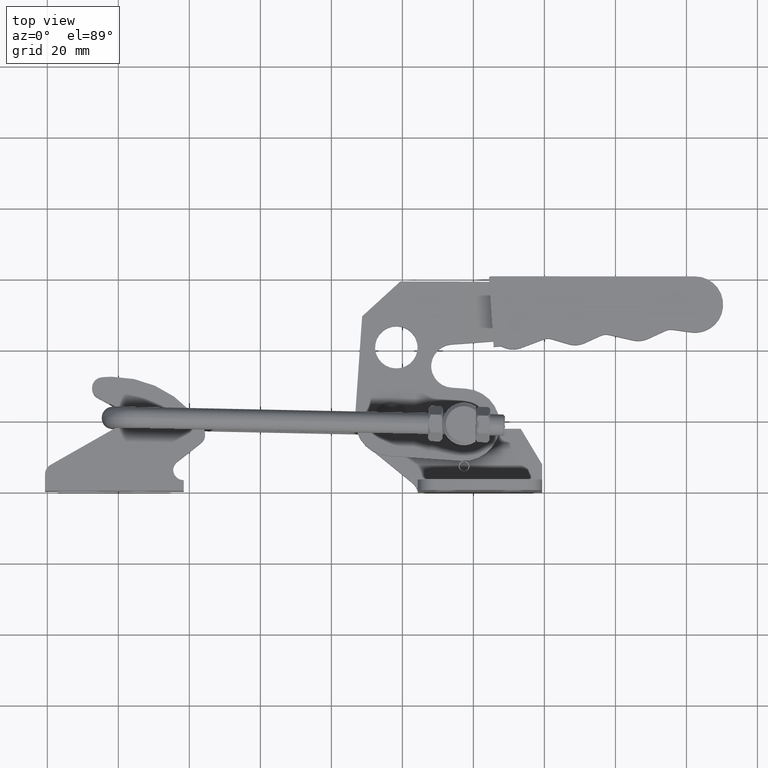
[diagram: clean part render]
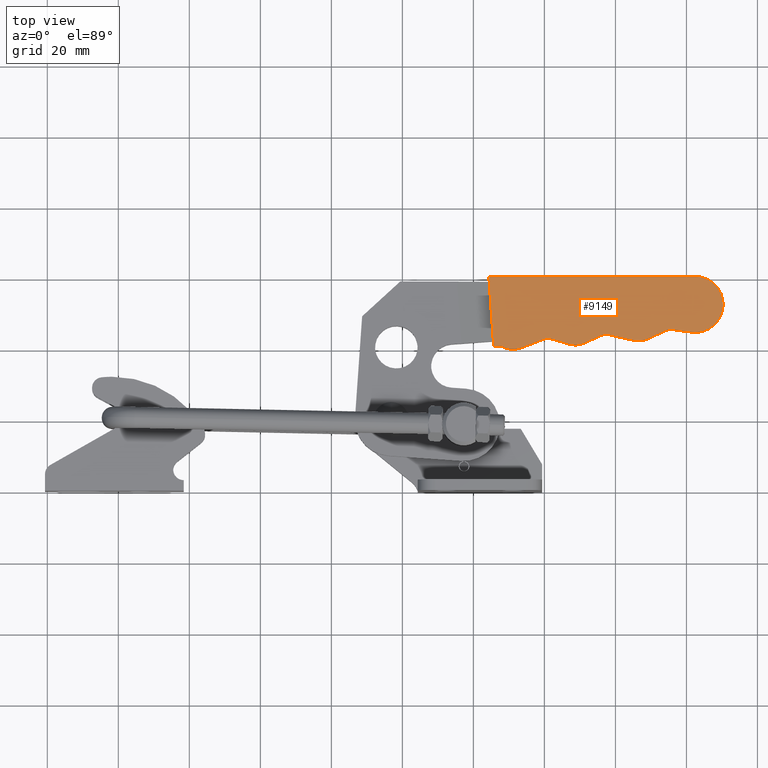
[diagram: same view with one face highlighted and labeled with its STEP entity id]
A machine part, top view. The second image highlights one B-rep face of the part: STEP entity #9149.
In plain terms, the highlighted planar face has unit normal (0, 0, -1).
Its self-contained STEP definition (entity closure, byte-faithful):
#76 = DIRECTION ( 'NONE',  ( 3.528049263139742100E-015, 2.465103509258972600E-016, -1.000000000000000000 ) ) ;
#91 = ORIENTED_EDGE ( 'NONE', *, *, #3216, .F. ) ;
#142 = DIRECTION ( 'NONE',  ( -0.9907650519138800900, 0.1355898665317079600, -3.462043605768647000E-015 ) ) ;
#207 = AXIS2_PLACEMENT_3D ( 'NONE', #624, #5859, #1384 ) ;
#265 = VECTOR ( 'NONE', #3453, 999.9999999999998900 ) ;
#420 = CARTESIAN_POINT ( 'NONE',  ( -8.394934574473172300, 39.99436621426871600, 4.499999999999398700 ) ) ;
#453 = AXIS2_PLACEMENT_3D ( 'NONE', #2389, #7615, #3133 ) ;
#496 = LINE ( 'NONE', #4918, #265 ) ;
#499 = DIRECTION ( 'NONE',  ( -3.528049263139742100E-015, -2.465103509258972600E-016, 1.000000000000000000 ) ) ;
#563 = EDGE_CURVE ( 'NONE', #1938, #8338, #6889, .T. ) ;
#624 = CARTESIAN_POINT ( 'NONE',  ( -8.847024502132685000, 46.47763358854141600, 4.499999999999398700 ) ) ;
#722 = DIRECTION ( 'NONE',  ( -0.06956288315259116800, 0.9975775685567007700, 0.0000000000000000000 ) ) ;
#744 = VECTOR ( 'NONE', #5082, 1000.000000000000200 ) ;
#770 = CARTESIAN_POINT ( 'NONE',  ( -15.62153153633381900, 59.99098630392347800, 4.499999999999377400 ) ) ;
#807 = VERTEX_POINT ( 'NONE', #974 ) ;
#819 = DIRECTION ( 'NONE',  ( 3.528049263139742100E-015, 2.465103509258972600E-016, -1.000000000000000000 ) ) ;
#873 = CARTESIAN_POINT ( 'NONE',  ( 9.101349349825842000, 41.19585923807838400, 4.499999999999460000 ) ) ;
#881 = CARTESIAN_POINT ( 'NONE',  ( 42.44017598813253000, 52.60983404294545800, 4.499999999999580800 ) ) ;
#888 = CARTESIAN_POINT ( 'NONE',  ( 42.45489657251189900, 60.49998626798250000, 4.499999999999582600 ) ) ;
#905 = ORIENTED_EDGE ( 'NONE', *, *, #4943, .F. ) ;
#932 = ORIENTED_EDGE ( 'NONE', *, *, #563, .F. ) ;
#971 = CARTESIAN_POINT ( 'NONE',  ( 8.649250681687508500, 47.67925195657510100, 4.499999999999460000 ) ) ;
#974 = CARTESIAN_POINT ( 'NONE',  ( 15.88259737713627100, 43.83776167337118300, 4.499999999999484900 ) ) ;
#998 = VERTEX_POINT ( 'NONE', #2312 ) ;
#1012 = AXIS2_PLACEMENT_3D ( 'NONE', #5508, #1036, #6281 ) ;
#1036 = DIRECTION ( 'NONE',  ( 3.528049263139742100E-015, 2.465103509258972600E-016, -1.000000000000000000 ) ) ;
#1051 = CARTESIAN_POINT ( 'NONE',  ( 26.88525810611597300, 42.36917634020557000, 4.499999999999523000 ) ) ;
#1098 = CIRCLE ( 'NONE', #6557, 6.499136430941328900 ) ;
#1285 = ORIENTED_EDGE ( 'NONE', *, *, #2264, .F. ) ;
#1289 = EDGE_CURVE ( 'NONE', #7146, #8285, #3901, .T. ) ;
#1365 = VECTOR ( 'NONE', #142, 1000.000000000000100 ) ;
#1384 = DIRECTION ( 'NONE',  ( -0.06956288315259134800, 0.9975775685567007700, 0.0000000000000000000 ) ) ;
#1417 = CARTESIAN_POINT ( 'NONE',  ( 29.11299635033703500, 42.93161349163890600, 4.499999999999531000 ) ) ;
#1442 = CARTESIAN_POINT ( 'NONE',  ( 41.42658425903755400, 44.78504327024285200, 4.499999999999575500 ) ) ;
#1482 = DIRECTION ( 'NONE',  ( -0.9355093781876253600, -0.3533018586464023400, -3.387615737532867500E-015 ) ) ;
#1555 = CIRCLE ( 'NONE', #3596, 0.5000000000000767200 ) ;
#1561 = FACE_OUTER_BOUND ( 'NONE', #8231, .T. ) ;
#1646 = DIRECTION ( 'NONE',  ( -0.06956288315259177800, 0.9975775685567006600, 0.0000000000000000000 ) ) ;
#1740 = DIRECTION ( 'NONE',  ( -0.06956288315259122300, 0.9975775685567006600, 0.0000000000000000000 ) ) ;
#1853 = CARTESIAN_POINT ( 'NONE',  ( 26.43311949642993100, 48.85314184680763800, 4.499999999999523000 ) ) ;
#1890 = EDGE_CURVE ( 'NONE', #8691, #998, #3305, .T. ) ;
#1922 = VERTEX_POINT ( 'NONE', #3205 ) ;
#1938 = VERTEX_POINT ( 'NONE', #9791 ) ;
#2042 = ORIENTED_EDGE ( 'NONE', *, *, #3042, .F. ) ;
#2133 = CARTESIAN_POINT ( 'NONE',  ( 42.44017598813253000, 52.60983404294545800, 4.499999999999580800 ) ) ;
#2233 = CARTESIAN_POINT ( 'NONE',  ( -0.2155267902284804800, 42.79035190241494000, 4.499999999999428000 ) ) ;
#2235 = EDGE_CURVE ( 'NONE', #807, #8301, #2721, .T. ) ;
#2264 = EDGE_CURVE ( 'NONE', #4058, #7446, #2965, .T. ) ;
#2312 = CARTESIAN_POINT ( 'NONE',  ( -14.28231617154315800, 40.72736354355279100, 4.499999999999377400 ) ) ;
#2343 = CARTESIAN_POINT ( 'NONE',  ( 6.796185072324989900, 41.44989226272318900, 4.499999999999452000 ) ) ;
#2355 = ORIENTED_EDGE ( 'NONE', *, *, #1289, .F. ) ;
#2389 = CARTESIAN_POINT ( 'NONE',  ( 35.60604295396112200, 42.04894395722413900, 4.499999999999554100 ) ) ;
#2464 = ORIENTED_EDGE ( 'NONE', *, *, #2235, .F. ) ;
#2581 = DIRECTION ( 'NONE',  ( -0.06956288315259116800, 0.9975775685567007700, 0.0000000000000000000 ) ) ;
#2593 = VERTEX_POINT ( 'NONE', #4960 ) ;
#2671 = CARTESIAN_POINT ( 'NONE',  ( 42.45489657251189900, 60.49998626798250000, 4.499999999999582600 ) ) ;
#2721 = LINE ( 'NONE', #8435, #744 ) ;
#2782 = VERTEX_POINT ( 'NONE', #2343 ) ;
#2800 = CIRCLE ( 'NONE', #9417, 7.890165957054484200 ) ;
#2881 = VECTOR ( 'NONE', #6317, 1000.000000000000100 ) ;
#2899 = DIRECTION ( 'NONE',  ( -0.06956288315259132000, 0.9975775685567007700, 0.0000000000000000000 ) ) ;
#2915 = VERTEX_POINT ( 'NONE', #1051 ) ;
#2932 = EDGE_CURVE ( 'NONE', #2915, #1938, #8107, .T. ) ;
#2965 = CIRCLE ( 'NONE', #7569, 3.500938386253589700 ) ;
#2982 = CARTESIAN_POINT ( 'NONE',  ( 11.34930705034278900, 41.76752886139609400, 4.499999999999468000 ) ) ;
#3042 = EDGE_CURVE ( 'NONE', #8338, #807, #6233, .T. ) ;
#3055 = EDGE_CURVE ( 'NONE', #2782, #4058, #496, .T. ) ;
#3133 = DIRECTION ( 'NONE',  ( -0.06956288315259073800, 0.9975775685567007700, 0.0000000000000000000 ) ) ;
#3138 = EDGE_CURVE ( 'NONE', #7232, #3429, #7984, .T. ) ;
#3155 = DIRECTION ( 'NONE',  ( 3.528049263139741700E-015, 2.465103509258972100E-016, -1.000000000000000000 ) ) ;
#3178 = CARTESIAN_POINT ( 'NONE',  ( 25.00284444111430600, 42.51275137939033800, 4.499999999999516800 ) ) ;
#3205 = CARTESIAN_POINT ( 'NONE',  ( 34.08322345196583600, 45.20084265220497600, 4.499999999999549700 ) ) ;
#3216 = EDGE_CURVE ( 'NONE', #4258, #2593, #1555, .T. ) ;
#3236 = ORIENTED_EDGE ( 'NONE', *, *, #8892, .F. ) ;
#3276 = CARTESIAN_POINT ( 'NONE',  ( 26.43311949642993100, 48.85314184680763800, 4.499999999999523000 ) ) ;
#3305 = LINE ( 'NONE', #7145, #7312 ) ;
#3319 = VECTOR ( 'NONE', #1482, 1000.000000000000200 ) ;
#3325 = VECTOR ( 'NONE', #6899, 1000.000000000000100 ) ;
#3350 = ORIENTED_EDGE ( 'NONE', *, *, #6816, .F. ) ;
#3429 = VERTEX_POINT ( 'NONE', #420 ) ;
#3443 = VECTOR ( 'NONE', #7918, 1000.000000000000000 ) ;
#3453 = DIRECTION ( 'NONE',  ( -0.9584903717661582600, 0.2851248976002828700, -3.311315011270976400E-015 ) ) ;
#3562 = LINE ( 'NONE', #7599, #1365 ) ;
#3596 = AXIS2_PLACEMENT_3D ( 'NONE', #9824, #5177, #722 ) ;
#3698 = CARTESIAN_POINT ( 'NONE',  ( -0.2155267902284804800, 42.79035190241494000, 4.499999999999428000 ) ) ;
#3704 = CIRCLE ( 'NONE', #1012, 6.499136430941328900 ) ;
#3709 = DIRECTION ( 'NONE',  ( -0.06956288315259177800, 0.9975775685567006600, 0.0000000000000000000 ) ) ;
#3838 = ORIENTED_EDGE ( 'NONE', *, *, #7432, .F. ) ;
#3901 = CIRCLE ( 'NONE', #6136, 7.890165957054484200 ) ;
#3929 = ORIENTED_EDGE ( 'NONE', *, *, #4499, .F. ) ;
#4018 = DIRECTION ( 'NONE',  ( -0.06956288315259116800, 0.9975775685567007700, 0.0000000000000000000 ) ) ;
#4058 = VERTEX_POINT ( 'NONE', #7320 ) ;
#4169 = ORIENTED_EDGE ( 'NONE', *, *, #5618, .F. ) ;
#4258 = VERTEX_POINT ( 'NONE', #770 ) ;
#4261 = VERTEX_POINT ( 'NONE', #6781 ) ;
#4394 = ORIENTED_EDGE ( 'NONE', *, *, #6719, .F. ) ;
#4499 = EDGE_CURVE ( 'NONE', #1922, #4765, #8544, .T. ) ;
#4765 = VERTEX_POINT ( 'NONE', #1417 ) ;
#4918 = CARTESIAN_POINT ( 'NONE',  ( 6.796185072324989900, 41.44989226272318900, 4.499999999999452000 ) ) ;
#4937 = AXIS2_PLACEMENT_3D ( 'NONE', #7641, #3155, #8394 ) ;
#4943 = EDGE_CURVE ( 'NONE', #8285, #9666, #2800, .T. ) ;
#4949 = CARTESIAN_POINT ( 'NONE',  ( 17.33681656492434800, 40.65338659299204900, 4.499999999999488400 ) ) ;
#4960 = CARTESIAN_POINT ( 'NONE',  ( -15.12251247296518600, 60.52566277354034000, 4.499999999999379200 ) ) ;
#5082 = DIRECTION ( 'NONE',  ( -0.9096359010742353100, -0.4154064605622592200, -3.311642262880499500E-015 ) ) ;
#5149 = CARTESIAN_POINT ( 'NONE',  ( 42.98903868065767900, 44.73878147199819500, 4.499999999999580800 ) ) ;
#5177 = DIRECTION ( 'NONE',  ( 3.528049263139742100E-015, 2.465103509258972600E-016, -1.000000000000000000 ) ) ;
#5287 = CARTESIAN_POINT ( 'NONE',  ( -8.847024502132685000, 46.47763358854141600, 4.499999999999398700 ) ) ;
#5441 = LINE ( 'NONE', #7169, #3443 ) ;
#5508 = CARTESIAN_POINT ( 'NONE',  ( 8.649250681687508500, 47.67925195657510100, 4.499999999999460000 ) ) ;
#5609 = ORIENTED_EDGE ( 'NONE', *, *, #6787, .F. ) ;
#5618 = EDGE_CURVE ( 'NONE', #4261, #1922, #7600, .T. ) ;
#5624 = VERTEX_POINT ( 'NONE', #873 ) ;
#5668 = DIRECTION ( 'NONE',  ( -3.528049263139742100E-015, -2.465103509258972600E-016, 1.000000000000000000 ) ) ;
#5685 = CARTESIAN_POINT ( 'NONE',  ( -12.14328303916115100, 40.87657825886763200, 4.499999999999385400 ) ) ;
#5722 = DIRECTION ( 'NONE',  ( -0.06956288315259165400, 0.9975775685567006600, 0.0000000000000000000 ) ) ;
#5727 = EDGE_CURVE ( 'NONE', #8301, #5624, #3704, .T. ) ;
#5859 = DIRECTION ( 'NONE',  ( 3.528049263139742100E-015, 2.465103509258972600E-016, -1.000000000000000000 ) ) ;
#6068 = DIRECTION ( 'NONE',  ( -0.06956288315259134800, 0.9975775685567007700, 0.0000000000000000000 ) ) ;
#6117 = PLANE ( 'NONE',  #4937 ) ;
#6131 = DIRECTION ( 'NONE',  ( 3.528049263139742100E-015, 2.465103509258972600E-016, -1.000000000000000000 ) ) ;
#6136 = AXIS2_PLACEMENT_3D ( 'NONE', #2133, #76, #3709 ) ;
#6188 = EDGE_CURVE ( 'NONE', #4765, #2915, #7117, .T. ) ;
#6218 = DIRECTION ( 'NONE',  ( 3.528049263139742100E-015, 2.465103509258972600E-016, -1.000000000000000000 ) ) ;
#6233 = CIRCLE ( 'NONE', #6364, 3.500713941279775200 ) ;
#6281 = DIRECTION ( 'NONE',  ( -0.06956288315259122300, 0.9975775685567006600, 0.0000000000000000000 ) ) ;
#6299 = CARTESIAN_POINT ( 'NONE',  ( 34.08322345196583600, 45.20084265220497600, 4.499999999999549700 ) ) ;
#6317 = DIRECTION ( 'NONE',  ( -0.9754881175333293100, 0.2200521132624757800, -3.387325010602719200E-015 ) ) ;
#6364 = AXIS2_PLACEMENT_3D ( 'NONE', #4949, #499, #5722 ) ;
#6557 = AXIS2_PLACEMENT_3D ( 'NONE', #971, #6218, #1740 ) ;
#6719 = EDGE_CURVE ( 'NONE', #3429, #8691, #7798, .T. ) ;
#6781 = CARTESIAN_POINT ( 'NONE',  ( 36.13647141903143700, 45.50901480368411700, 4.499999999999556800 ) ) ;
#6787 = EDGE_CURVE ( 'NONE', #9666, #4261, #3562, .T. ) ;
#6816 = EDGE_CURVE ( 'NONE', #2593, #7146, #9139, .T. ) ;
#6889 = LINE ( 'NONE', #3178, #2881 ) ;
#6897 = ORIENTED_EDGE ( 'NONE', *, *, #3138, .F. ) ;
#6899 = DIRECTION ( 'NONE',  ( 0.9999999005653978900, -0.0004459475240439491600, 3.527938981648921700E-015 ) ) ;
#7004 = ORIENTED_EDGE ( 'NONE', *, *, #7142, .F. ) ;
#7036 = AXIS2_PLACEMENT_3D ( 'NONE', #1853, #7088, #2581 ) ;
#7060 = DIRECTION ( 'NONE',  ( -0.9096733142869715100, -0.4153245252500227800, -3.311754060635552400E-015 ) ) ;
#7088 = DIRECTION ( 'NONE',  ( 3.528049263139742100E-015, 2.465103509258972600E-016, -1.000000000000000000 ) ) ;
#7117 = CIRCLE ( 'NONE', #7468, 6.499710609955983800 ) ;
#7142 = EDGE_CURVE ( 'NONE', #998, #4258, #5441, .T. ) ;
#7145 = CARTESIAN_POINT ( 'NONE',  ( -14.28231617154315800, 40.72736354355279100, 4.499999999999377400 ) ) ;
#7146 = VERTEX_POINT ( 'NONE', #2671 ) ;
#7169 = CARTESIAN_POINT ( 'NONE',  ( -15.62153153633381900, 59.99098630392347800, 4.499999999999377400 ) ) ;
#7232 = VERTEX_POINT ( 'NONE', #9590 ) ;
#7312 = VECTOR ( 'NONE', #8413, 1000.000000000000100 ) ;
#7320 = CARTESIAN_POINT ( 'NONE',  ( 2.019422055911983100, 42.87084974548427100, 4.499999999999436000 ) ) ;
#7432 = EDGE_CURVE ( 'NONE', #7446, #7232, #9386, .T. ) ;
#7446 = VERTEX_POINT ( 'NONE', #3698 ) ;
#7468 = AXIS2_PLACEMENT_3D ( 'NONE', #3276, #8508, #4018 ) ;
#7470 = ORIENTED_EDGE ( 'NONE', *, *, #2932, .F. ) ;
#7569 = AXIS2_PLACEMENT_3D ( 'NONE', #8282, #5668, #2899 ) ;
#7599 = CARTESIAN_POINT ( 'NONE',  ( 36.13647141903143700, 45.50901480368411700, 4.499999999999556800 ) ) ;
#7600 = CIRCLE ( 'NONE', #453, 3.500492053851723500 ) ;
#7615 = DIRECTION ( 'NONE',  ( -3.528049263139742100E-015, -2.465103509258972600E-016, 1.000000000000000000 ) ) ;
#7641 = CARTESIAN_POINT ( 'NONE',  ( -15.12273544672709800, 60.02566282325756900, 4.499999999999379200 ) ) ;
#7798 = CIRCLE ( 'NONE', #8416, 6.499010782342183200 ) ;
#7848 = VECTOR ( 'NONE', #7060, 1000.000000000000100 ) ;
#7918 = DIRECTION ( 'NONE',  ( -0.06935303866860381700, 0.9975921792132450600, 1.235861207517847300E-018 ) ) ;
#7984 = CIRCLE ( 'NONE', #207, 6.499010782342183200 ) ;
#8042 = ORIENTED_EDGE ( 'NONE', *, *, #1890, .F. ) ;
#8047 = ORIENTED_EDGE ( 'NONE', *, *, #3055, .F. ) ;
#8107 = CIRCLE ( 'NONE', #7036, 6.499710609955983800 ) ;
#8231 = EDGE_LOOP ( 'NONE', ( #91, #7004, #8042, #4394, #6897, #3838, #1285, #8047, #3236, #8641, #2464, #2042, #932, #7470, #9453, #3929, #4169, #5609, #905, #2355, #3350 ) ) ;
#8282 = CARTESIAN_POINT ( 'NONE',  ( 1.021361248641508500, 39.51519120961766200, 4.499999999999431600 ) ) ;
#8285 = VERTEX_POINT ( 'NONE', #5149 ) ;
#8301 = VERTEX_POINT ( 'NONE', #2982 ) ;
#8338 = VERTEX_POINT ( 'NONE', #9046 ) ;
#8394 = DIRECTION ( 'NONE',  ( -0.06956288315259134800, 0.9975775685567007700, 4.919178523397262900E-019 ) ) ;
#8413 = DIRECTION ( 'NONE',  ( -0.9975757533846757500, -0.06958890902289295600, -3.536650788038662500E-015 ) ) ;
#8416 = AXIS2_PLACEMENT_3D ( 'NONE', #5287, #819, #6068 ) ;
#8435 = CARTESIAN_POINT ( 'NONE',  ( 15.88259737713627100, 43.83776167337118300, 4.499999999999484900 ) ) ;
#8508 = DIRECTION ( 'NONE',  ( 3.528049263139742100E-015, 2.465103509258972600E-016, -1.000000000000000000 ) ) ;
#8544 = LINE ( 'NONE', #6299, #7848 ) ;
#8641 = ORIENTED_EDGE ( 'NONE', *, *, #5727, .F. ) ;
#8691 = VERTEX_POINT ( 'NONE', #5685 ) ;
#8892 = EDGE_CURVE ( 'NONE', #5624, #2782, #1098, .T. ) ;
#9046 = CARTESIAN_POINT ( 'NONE',  ( 18.10657027430790600, 44.06842353650537800, 4.499999999999492900 ) ) ;
#9139 = LINE ( 'NONE', #888, #3325 ) ;
#9149 = ADVANCED_FACE ( 'NONE', ( #1561 ), #6117, .F. ) ;
#9386 = LINE ( 'NONE', #2233, #3319 ) ;
#9417 = AXIS2_PLACEMENT_3D ( 'NONE', #881, #6131, #1646 ) ;
#9453 = ORIENTED_EDGE ( 'NONE', *, *, #6188, .F. ) ;
#9590 = CARTESIAN_POINT ( 'NONE',  ( -6.550841693592206000, 40.39777457218559000, 4.499999999999404900 ) ) ;
#9666 = VERTEX_POINT ( 'NONE', #1442 ) ;
#9791 = CARTESIAN_POINT ( 'NONE',  ( 25.00284444111430600, 42.51275137939033800, 4.499999999999516800 ) ) ;
#9824 = CARTESIAN_POINT ( 'NONE',  ( -15.12273544672709800, 60.02566282325756900, 4.499999999999379200 ) ) ;